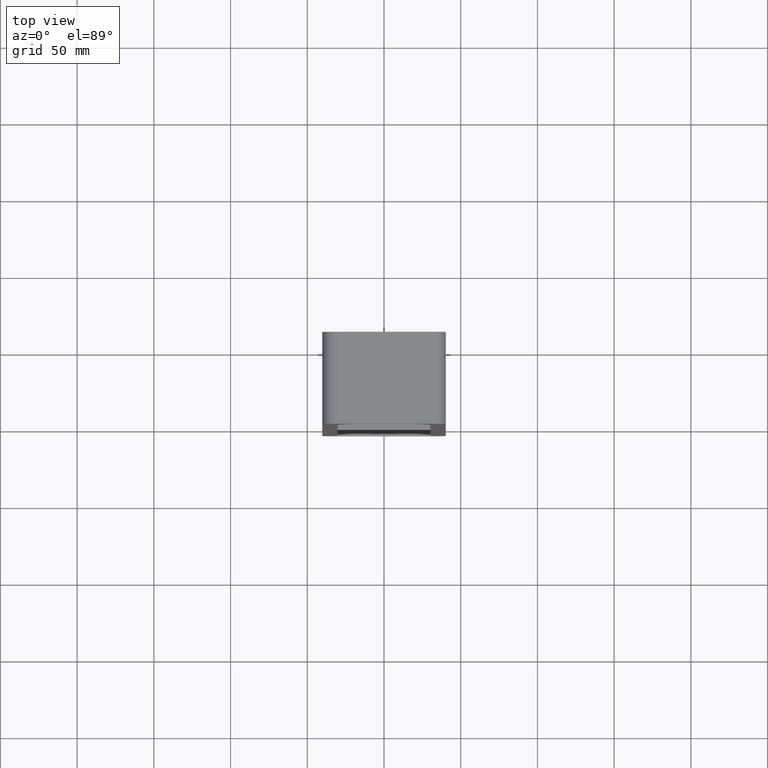
[diagram: clean part render]
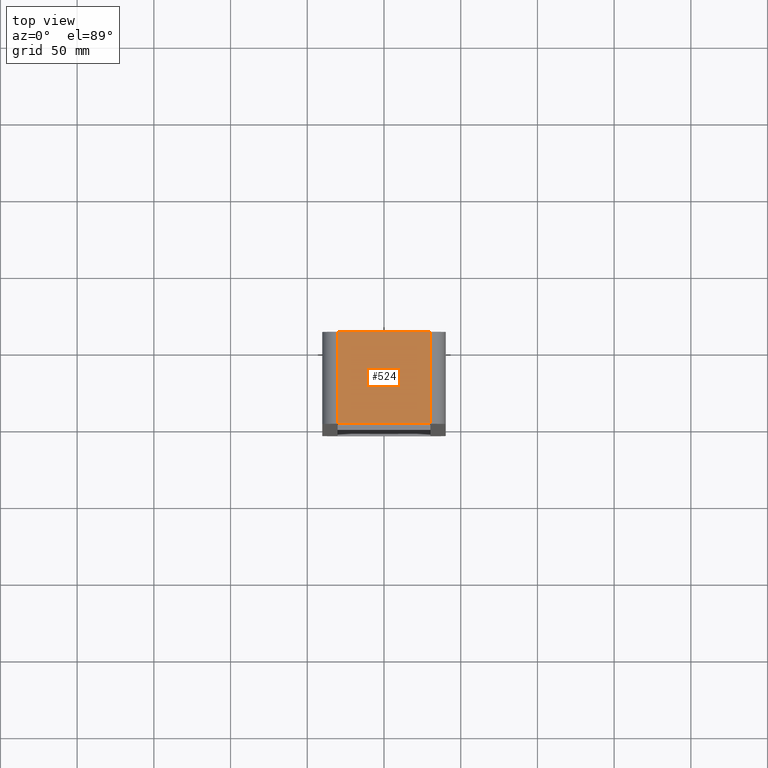
[diagram: same view with one face highlighted and labeled with its STEP entity id]
A machine part, top view. The second image highlights one B-rep face of the part: STEP entity #524.
In plain terms, the highlighted planar face has unit normal (0, 0, 1).
Its self-contained STEP definition (entity closure, byte-faithful):
#297=CARTESIAN_POINT('',(30.250000000000004,-3.0,233.00000000000006));
#298=VERTEX_POINT('',#297);
#306=CARTESIAN_POINT('',(-30.250000000000004,-3.0,233.00000000000006));
#307=VERTEX_POINT('',#306);
#308=CARTESIAN_POINT('',(30.25,-3.0,233.00000000000006));
#309=DIRECTION('',(-1.0,0.0,0.0));
#310=VECTOR('',#309,60.5);
#311=LINE('',#308,#310);
#312=EDGE_CURVE('',#298,#307,#311,.T.);
#409=CARTESIAN_POINT('',(30.250000000000004,57.0,233.00000000000006));
#410=VERTEX_POINT('',#409);
#418=CARTESIAN_POINT('',(30.250000000000004,57.0,233.00000000000006));
#419=DIRECTION('',(0.0,-1.0,0.0));
#420=VECTOR('',#419,60.0);
#421=LINE('',#418,#420);
#422=EDGE_CURVE('',#410,#298,#421,.T.);
#488=CARTESIAN_POINT('',(-30.250000000000004,57.0,233.00000000000006));
#489=VERTEX_POINT('',#488);
#499=CARTESIAN_POINT('',(-30.250000000000004,-3.0,233.00000000000006));
#500=DIRECTION('',(0.0,1.0,0.0));
#501=VECTOR('',#500,60.0);
#502=LINE('',#499,#501);
#503=EDGE_CURVE('',#307,#489,#502,.T.);
#508=CARTESIAN_POINT('',(-40.25,0.0,233.00000000000006));
#509=DIRECTION('',(0.0,0.0,1.0));
#510=DIRECTION('',(1.0,0.0,0.0));
#511=AXIS2_PLACEMENT_3D('',#508,#509,#510);
#512=PLANE('',#511);
#513=ORIENTED_EDGE('',*,*,#422,.F.);
#514=CARTESIAN_POINT('',(-30.25,57.0,233.00000000000006));
#515=DIRECTION('',(1.0,0.0,0.0));
#516=VECTOR('',#515,60.5);
#517=LINE('',#514,#516);
#518=EDGE_CURVE('',#489,#410,#517,.T.);
#519=ORIENTED_EDGE('',*,*,#518,.F.);
#520=ORIENTED_EDGE('',*,*,#503,.F.);
#521=ORIENTED_EDGE('',*,*,#312,.F.);
#522=EDGE_LOOP('',(#513,#519,#520,#521));
#523=FACE_OUTER_BOUND('',#522,.T.);
#524=ADVANCED_FACE('',(#523),#512,.T.);